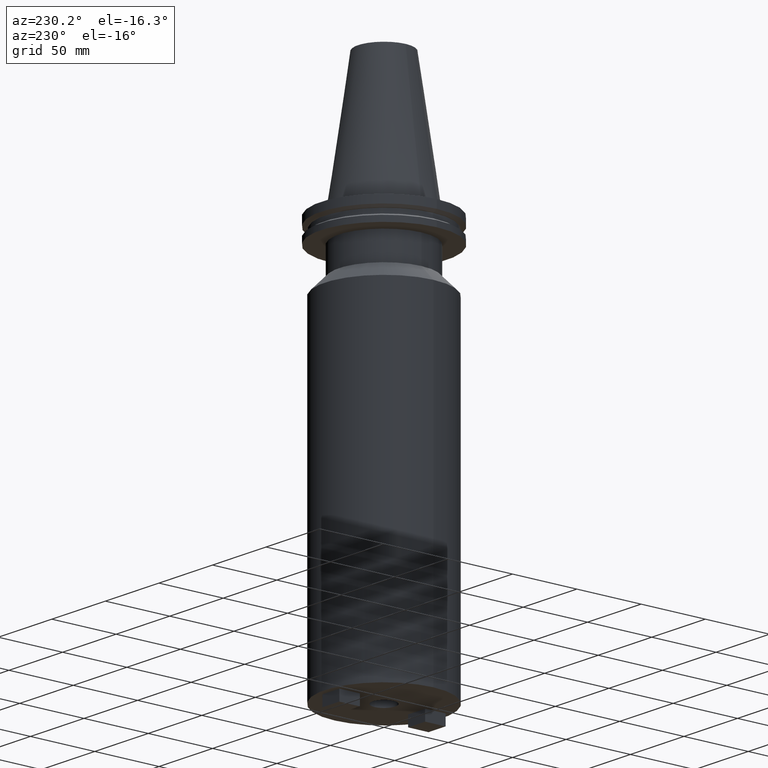
[diagram: clean part render]
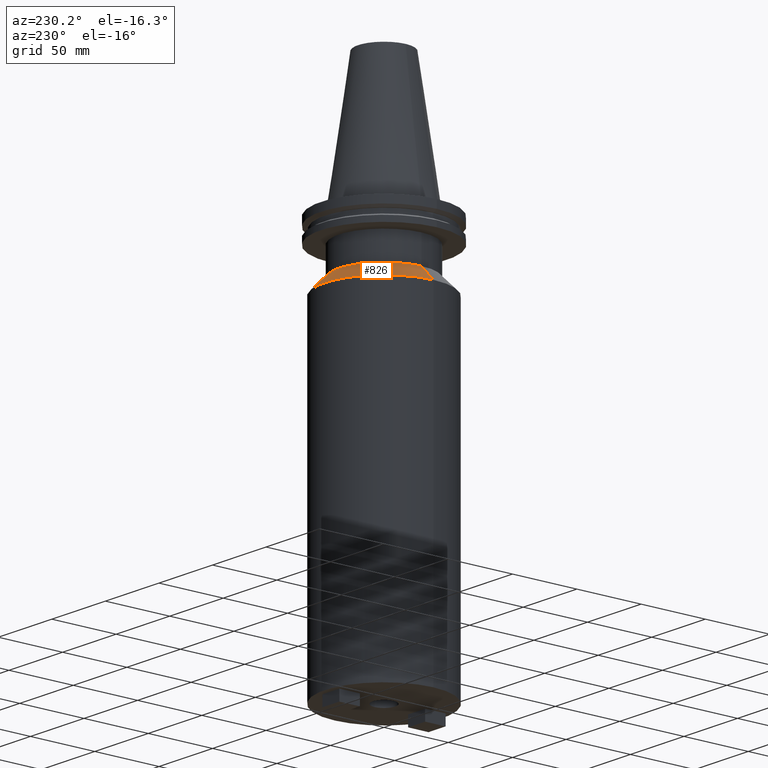
[diagram: same view with one face highlighted and labeled with its STEP entity id]
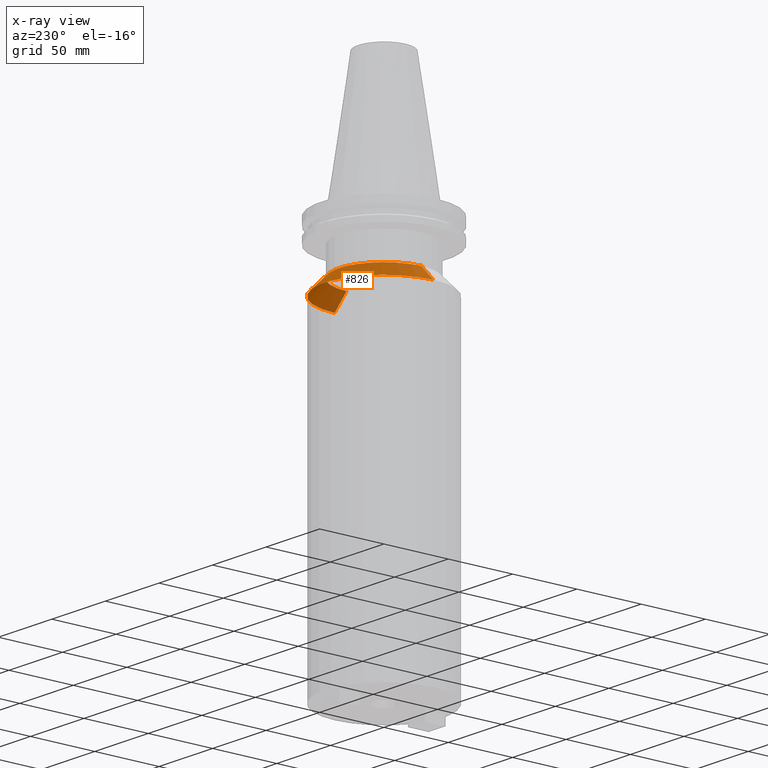
[diagram: x-ray of the same camera — body ghosted, the highlighted face saturated]
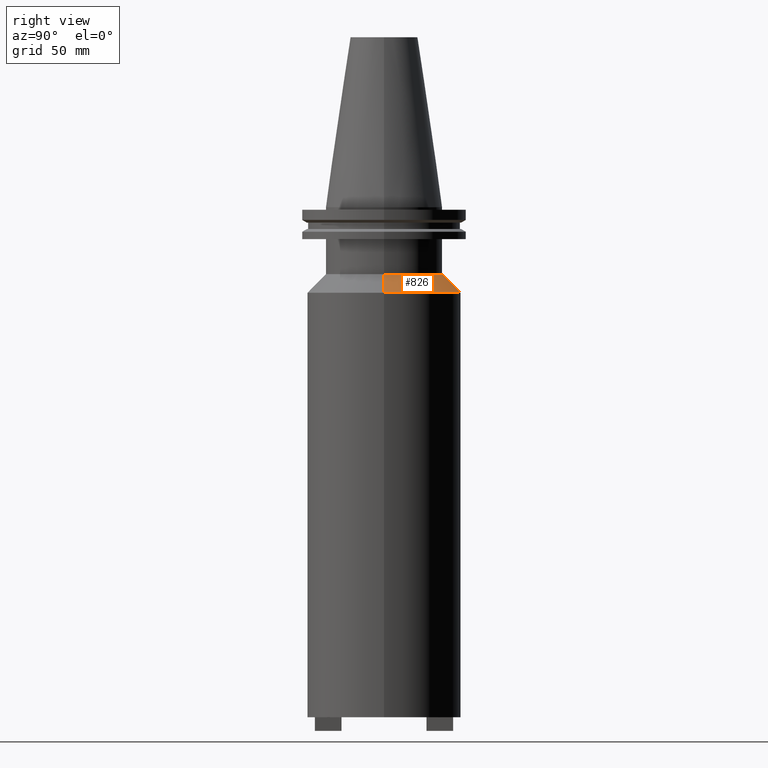
[diagram: same view with one face highlighted and labeled with its STEP entity id]
A machine part, auxiliary view. The second image highlights one B-rep face of the part: STEP entity #826.
The next image is the same camera in x-ray: the body ghosted, the highlighted face saturated — about 24% of this face is hidden behind the body in this view.
A second angle (right view) of the same face is appended — the face is thin or edge-on in the first view.
In plain terms, the highlighted conical surface has half-angle 45 deg.
Its self-contained STEP definition (entity closure, byte-faithful):
#29 = CARTESIAN_POINT ( 'NONE',  ( -46.04999999999999716, 0.000000000000000000, -51.12499999999995026 ) ) ;
#47 = CIRCLE ( 'NONE', #1095, 34.92499999999999716 ) ;
#76 = DIRECTION ( 'NONE',  ( 0.000000000000000000, 0.000000000000000000, -1.000000000000000000 ) ) ;
#78 = AXIS2_PLACEMENT_3D ( 'NONE', #679, #76, #524 ) ;
#89 = VERTEX_POINT ( 'NONE', #943 ) ;
#124 = DIRECTION ( 'NONE',  ( 1.000000000000000000, 0.000000000000000000, 0.000000000000000000 ) ) ;
#141 = AXIS2_PLACEMENT_3D ( 'NONE', #231, #755, #828 ) ;
#158 = EDGE_LOOP ( 'NONE', ( #248, #778, #905, #1082 ) ) ;
#195 = LINE ( 'NONE', #29, #688 ) ;
#231 = CARTESIAN_POINT ( 'NONE',  ( 0.000000000000000000, 0.000000000000000000, -51.12499999999995026 ) ) ;
#248 = ORIENTED_EDGE ( 'NONE', *, *, #516, .F. ) ;
#265 = FACE_OUTER_BOUND ( 'NONE', #158, .T. ) ;
#326 = EDGE_CURVE ( 'NONE', #737, #841, #717, .T. ) ;
#357 = VERTEX_POINT ( 'NONE', #984 ) ;
#358 = CARTESIAN_POINT ( 'NONE',  ( 46.04999999999999716, 5.639498510073560988E-15, -51.12499999999995026 ) ) ;
#433 = CONICAL_SURFACE ( 'NONE', #78, 46.04999999999999716, 0.7853981633974501664 ) ;
#516 = EDGE_CURVE ( 'NONE', #357, #89, #47, .T. ) ;
#524 = DIRECTION ( 'NONE',  ( -1.000000000000000000, 0.000000000000000000, 0.000000000000000000 ) ) ;
#557 = DIRECTION ( 'NONE',  ( -0.000000000000000000, -0.000000000000000000, 1.000000000000000000 ) ) ;
#568 = EDGE_CURVE ( 'NONE', #89, #841, #195, .T. ) ;
#628 = CARTESIAN_POINT ( 'NONE',  ( 0.000000000000000000, 0.000000000000000000, -39.99999999999999289 ) ) ;
#679 = CARTESIAN_POINT ( 'NONE',  ( 0.000000000000000000, 0.000000000000000000, -51.12499999999995026 ) ) ;
#685 = DIRECTION ( 'NONE',  ( 0.7071067811865489050, 8.659560562354950115E-17, -0.7071067811865462405 ) ) ;
#688 = VECTOR ( 'NONE', #882, 999.9999999999998863 ) ;
#701 = CARTESIAN_POINT ( 'NONE',  ( 46.04999999999999716, 5.639498510073560988E-15, -51.12499999999995026 ) ) ;
#703 = VECTOR ( 'NONE', #685, 999.9999999999998863 ) ;
#717 = CIRCLE ( 'NONE', #141, 46.04999999999999716 ) ;
#737 = VERTEX_POINT ( 'NONE', #358 ) ;
#755 = DIRECTION ( 'NONE',  ( -0.000000000000000000, -0.000000000000000000, 1.000000000000000000 ) ) ;
#778 = ORIENTED_EDGE ( 'NONE', *, *, #936, .T. ) ;
#826 = ADVANCED_FACE ( 'NONE', ( #265 ), #433, .T. ) ;
#828 = DIRECTION ( 'NONE',  ( 1.000000000000000000, 0.000000000000000000, 0.000000000000000000 ) ) ;
#841 = VERTEX_POINT ( 'NONE', #947 ) ;
#882 = DIRECTION ( 'NONE',  ( -0.7071067811865489050, 0.000000000000000000, -0.7071067811865462405 ) ) ;
#905 = ORIENTED_EDGE ( 'NONE', *, *, #326, .T. ) ;
#936 = EDGE_CURVE ( 'NONE', #357, #737, #1031, .T. ) ;
#943 = CARTESIAN_POINT ( 'NONE',  ( -34.92499999999999716, 4.277078946022130887E-15, -39.99999999999999289 ) ) ;
#947 = CARTESIAN_POINT ( 'NONE',  ( -46.04999999999999716, 0.000000000000000000, -51.12499999999995026 ) ) ;
#984 = CARTESIAN_POINT ( 'NONE',  ( 34.92499999999999716, 0.000000000000000000, -39.99999999999999289 ) ) ;
#1031 = LINE ( 'NONE', #701, #703 ) ;
#1082 = ORIENTED_EDGE ( 'NONE', *, *, #568, .F. ) ;
#1095 = AXIS2_PLACEMENT_3D ( 'NONE', #628, #557, #124 ) ;